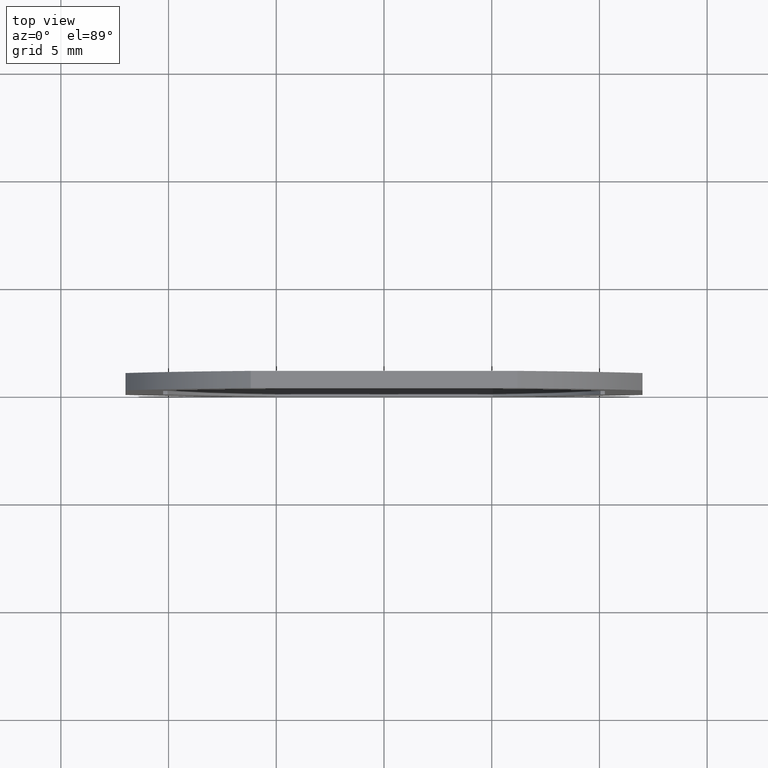
[diagram: clean part render]
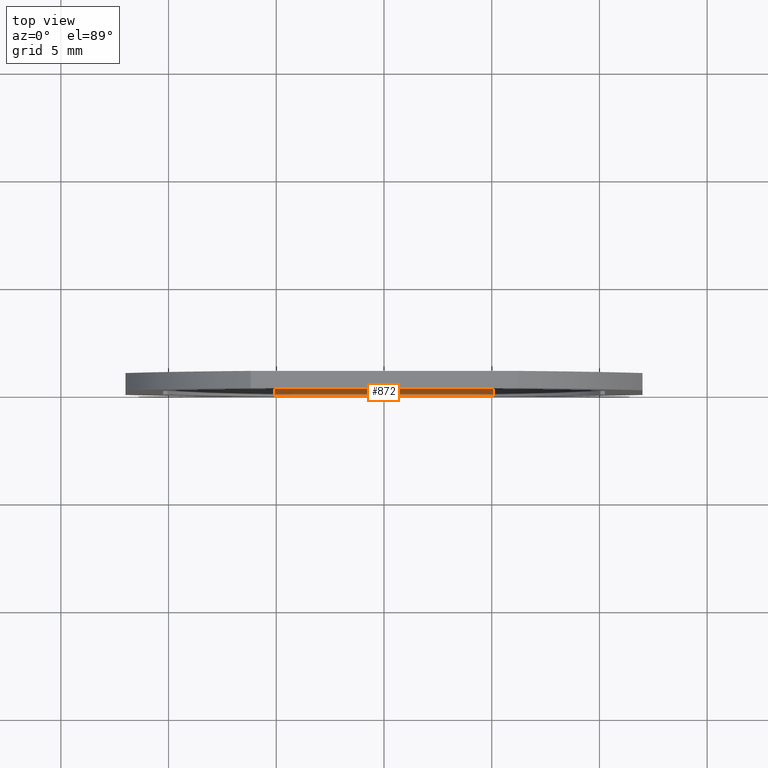
[diagram: same view with one face highlighted and labeled with its STEP entity id]
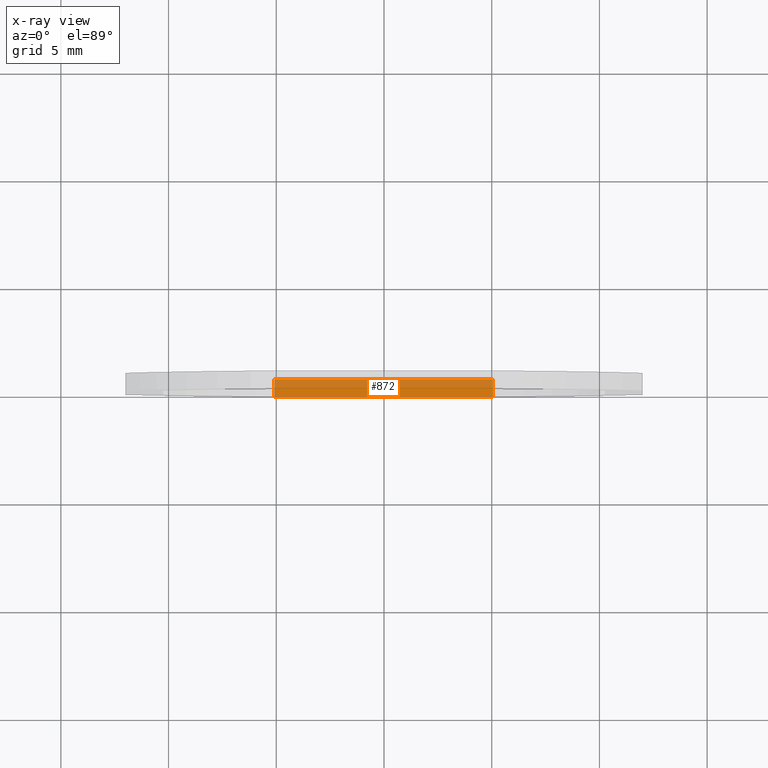
[diagram: x-ray of the same camera — body ghosted, the highlighted face saturated]
A machine part, top view. The second image highlights one B-rep face of the part: STEP entity #872.
The next image is the same camera in x-ray: the body ghosted, the highlighted face saturated — about 54% of this face is hidden behind the body in this view.
In plain terms, the highlighted face is a freeform B-spline surface patch.
Its self-contained STEP definition (entity closure, byte-faithful):
#199=CARTESIAN_POINT('',(5.055690104038391,0.0,-10.250000486848879));
#200=VERTEX_POINT('',#199);
#206=CARTESIAN_POINT('',(-5.081069177405810,0.0,-10.250000486848879));
#207=VERTEX_POINT('',#206);
#208=CARTESIAN_POINT('',(-5.081069177405810,0.0,-10.250000486848879));
#209=CARTESIAN_POINT('',(5.055690104038391,0.0,-10.250000486848879));
#210=QUASI_UNIFORM_CURVE('',1,(#208,#209),.UNSPECIFIED.,.F.,.U.);
#211=EDGE_CURVE('',#207,#200,#210,.T.);
#519=CARTESIAN_POINT('',(-5.081069177405810,0.800000000000023,-10.250000486848879));
#520=VERTEX_POINT('',#519);
#526=CARTESIAN_POINT('',(5.055690104038391,0.800000000000023,-10.250000486848879));
#527=VERTEX_POINT('',#526);
#528=CARTESIAN_POINT('',(-5.081069177405810,0.800000000000023,-10.250000486848879));
#529=CARTESIAN_POINT('',(5.055690104038391,0.800000000000023,-10.250000486848879));
#530=QUASI_UNIFORM_CURVE('',1,(#528,#529),.UNSPECIFIED.,.F.,.U.);
#531=EDGE_CURVE('',#520,#527,#530,.T.);
#849=CARTESIAN_POINT('',(5.055690104038391,0.800000000000023,-10.250000486848879));
#850=CARTESIAN_POINT('',(5.055690104038391,0.0,-10.250000486848879));
#851=QUASI_UNIFORM_CURVE('',1,(#849,#850),.UNSPECIFIED.,.F.,.U.);
#852=EDGE_CURVE('',#527,#200,#851,.T.);
#857=CARTESIAN_POINT('',(5.562021364597184,-0.039959998449446,-10.250000486848879));
#858=CARTESIAN_POINT('',(-5.587399803556771,-0.039959998449446,-10.250000486848879));
#859=CARTESIAN_POINT('',(5.562021364597184,0.839960019907141,-10.250000486848879));
#860=CARTESIAN_POINT('',(-5.587399803556771,0.839960019907141,-10.250000486848879));
#861=B_SPLINE_SURFACE_WITH_KNOTS('',1,1,((#857,#859),(#858,#860)),.UNSPECIFIED.,.F.,.F.,.U.,(2,2),(2,2),(0.0,11.149421168153960),(0.041708334948495,0.958291687403247),.UNSPECIFIED.);
#862=ORIENTED_EDGE('',*,*,#211,.T.);
#863=ORIENTED_EDGE('',*,*,#852,.F.);
#864=ORIENTED_EDGE('',*,*,#531,.F.);
#865=CARTESIAN_POINT('',(-5.081069177405810,0.800000000000023,-10.250000486848879));
#866=CARTESIAN_POINT('',(-5.081069177405810,0.0,-10.250000486848879));
#867=QUASI_UNIFORM_CURVE('',1,(#865,#866),.UNSPECIFIED.,.F.,.U.);
#868=EDGE_CURVE('',#520,#207,#867,.T.);
#869=ORIENTED_EDGE('',*,*,#868,.T.);
#870=EDGE_LOOP('',(#862,#863,#864,#869));
#871=FACE_OUTER_BOUND('',#870,.T.);
#872=ADVANCED_FACE('',(#871),#861,.F.);